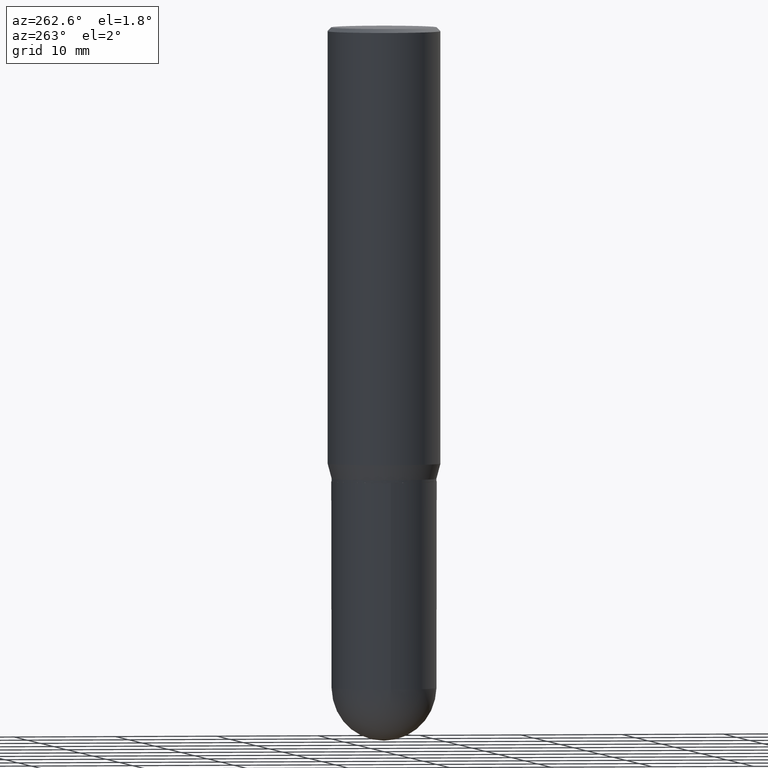
[diagram: clean part render]
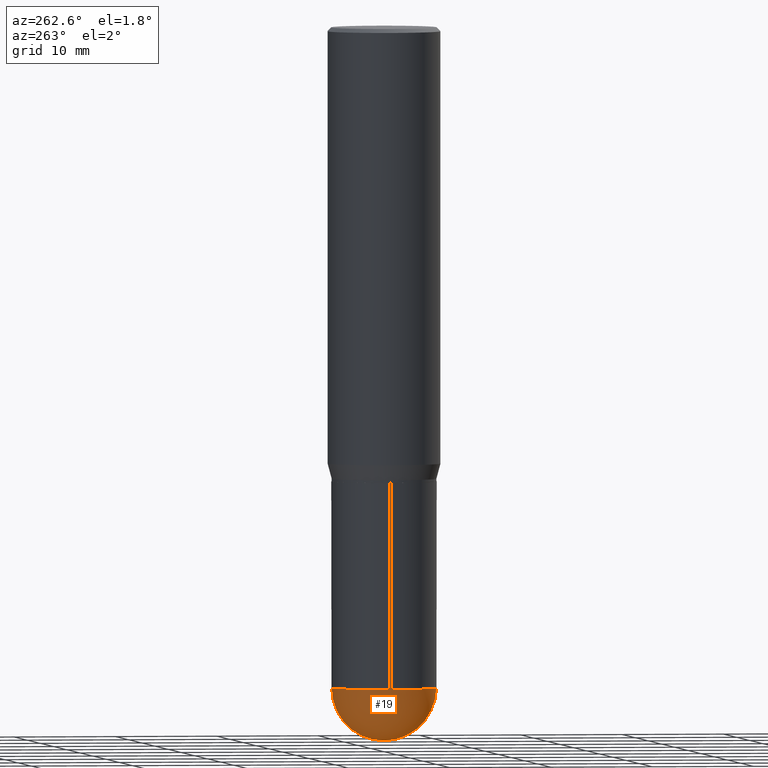
[diagram: same view with one face highlighted and labeled with its STEP entity id]
A machine part, auxiliary view. The second image highlights one B-rep face of the part: STEP entity #19.
In plain terms, the highlighted spherical surface has radius 5.1587 mm.
Its self-contained STEP definition (entity closure, byte-faithful):
#19 = ADVANCED_FACE ( 'NONE', ( #192 ), #162, .T. ) ;
#34 = EDGE_CURVE ( 'NONE', #373, #108, #385, .T. ) ;
#38 = DIRECTION ( 'NONE',  ( 1.000000000000000000, -6.982962677686262766E-15, 0.000000000000000000 ) ) ;
#78 = DIRECTION ( 'NONE',  ( -1.000000000000000000, 7.105427357601001070E-15, -4.926315508542082329E-29 ) ) ;
#79 = CARTESIAN_POINT ( 'NONE',  ( 6.210996075139691695E-29, -8.917326398390289827E-15, -2.546899999999999942 ) ) ;
#96 = DIRECTION ( 'NONE',  ( 1.000000000000000000, -6.982962677686265922E-15, 4.883557194083112340E-29 ) ) ;
#108 = VERTEX_POINT ( 'NONE', #299 ) ;
#120 = AXIS2_PLACEMENT_3D ( 'NONE', #183, #96, #250 ) ;
#125 = DIRECTION ( 'NONE',  ( -2.445468806185136597E-29, 3.491481338843145583E-15, 1.000000000000000000 ) ) ;
#135 = CARTESIAN_POINT ( 'NONE',  ( 6.716355003342508555E-29, -9.614009970063991023E-15, -2.750000000000000000 ) ) ;
#147 = AXIS2_PLACEMENT_3D ( 'NONE', #190, #125, #432 ) ;
#152 = VERTEX_POINT ( 'NONE', #388 ) ;
#154 = ORIENTED_EDGE ( 'NONE', *, *, #34, .T. ) ;
#162 = SPHERICAL_SURFACE ( 'NONE', #294, 0.2030999999999999472 ) ;
#183 = CARTESIAN_POINT ( 'NONE',  ( 6.210996075139691695E-29, -8.917326398390289827E-15, -2.546899999999999942 ) ) ;
#190 = CARTESIAN_POINT ( 'NONE',  ( 6.228364502472924746E-29, -8.892453821899607499E-15, -2.546899999999999942 ) ) ;
#192 = FACE_OUTER_BOUND ( 'NONE', #377, .T. ) ;
#197 = CARTESIAN_POINT ( 'NONE',  ( 6.228364502472924746E-29, -8.892453821899607499E-15, -2.546899999999999942 ) ) ;
#206 = AXIS2_PLACEMENT_3D ( 'NONE', #436, #78, #236 ) ;
#232 = EDGE_CURVE ( 'NONE', #373, #152, #305, .T. ) ;
#236 = DIRECTION ( 'NONE',  ( -7.105427357601001070E-15, -1.000000000000000000, 0.000000000000000000 ) ) ;
#246 = ORIENTED_EDGE ( 'NONE', *, *, #326, .F. ) ;
#249 = AXIS2_PLACEMENT_3D ( 'NONE', #197, #394, #38 ) ;
#250 = DIRECTION ( 'NONE',  ( 6.982962677686266711E-15, 1.000000000000000000, 0.000000000000000000 ) ) ;
#251 = EDGE_CURVE ( 'NONE', #152, #470, #328, .T. ) ;
#289 = ORIENTED_EDGE ( 'NONE', *, *, #232, .F. ) ;
#294 = AXIS2_PLACEMENT_3D ( 'NONE', #79, #354, #472 ) ;
#299 = CARTESIAN_POINT ( 'NONE',  ( -1.443112296328700980E-15, -0.2031000000000088845, -2.546899999999999498 ) ) ;
#305 = CIRCLE ( 'NONE', #120, 0.2030999999999999472 ) ;
#326 = EDGE_CURVE ( 'NONE', #470, #108, #476, .T. ) ;
#328 = CIRCLE ( 'NONE', #147, 0.2031000000000000583 ) ;
#354 = DIRECTION ( 'NONE',  ( -1.000000000000000000, 6.982962677686266711E-15, -4.883557194083112901E-29 ) ) ;
#373 = VERTEX_POINT ( 'NONE', #135 ) ;
#377 = EDGE_LOOP ( 'NONE', ( #289, #154, #246, #387 ) ) ;
#385 = CIRCLE ( 'NONE', #206, 0.2030999999999999472 ) ;
#387 = ORIENTED_EDGE ( 'NONE', *, *, #251, .F. ) ;
#388 = CARTESIAN_POINT ( 'NONE',  ( 1.418239719838142898E-15, 0.2030999999999910932, -2.546900000000000830 ) ) ;
#394 = DIRECTION ( 'NONE',  ( -2.445468806185136597E-29, 3.491481338843145583E-15, 1.000000000000000000 ) ) ;
#432 = DIRECTION ( 'NONE',  ( 1.000000000000000000, -6.982962677686262766E-15, 0.000000000000000000 ) ) ;
#436 = CARTESIAN_POINT ( 'NONE',  ( 6.210996075139691695E-29, -8.917326398390289827E-15, -2.546899999999999942 ) ) ;
#470 = VERTEX_POINT ( 'NONE', #488 ) ;
#472 = DIRECTION ( 'NONE',  ( 6.982962677686266711E-15, 1.000000000000000000, -2.690150658458162309E-15 ) ) ;
#476 = CIRCLE ( 'NONE', #249, 0.2031000000000000583 ) ;
#488 = CARTESIAN_POINT ( 'NONE',  ( -0.2031000000000000583, -6.058160786108791010E-15, -2.546899999999999942 ) ) ;